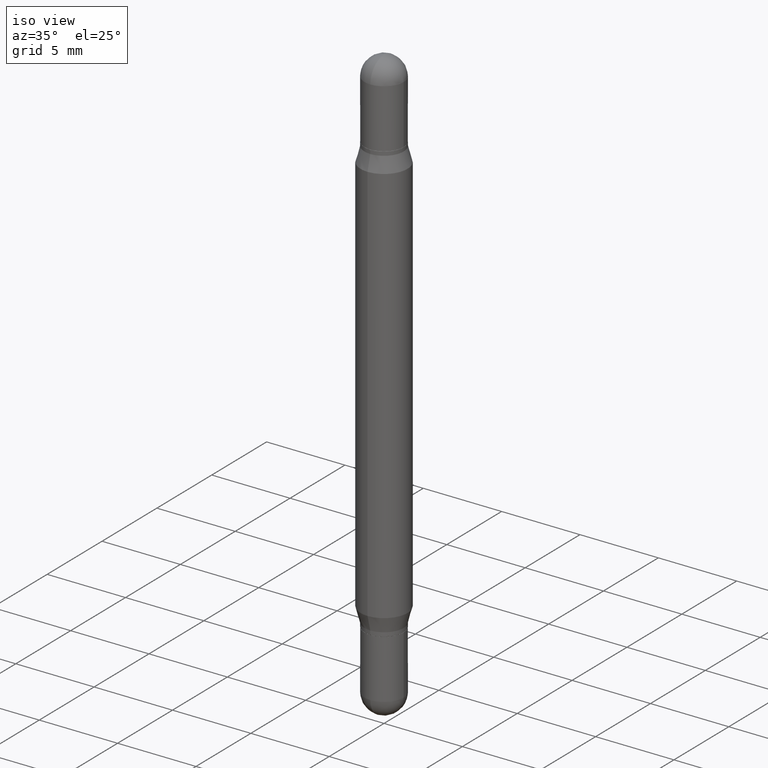
[diagram: clean part render]
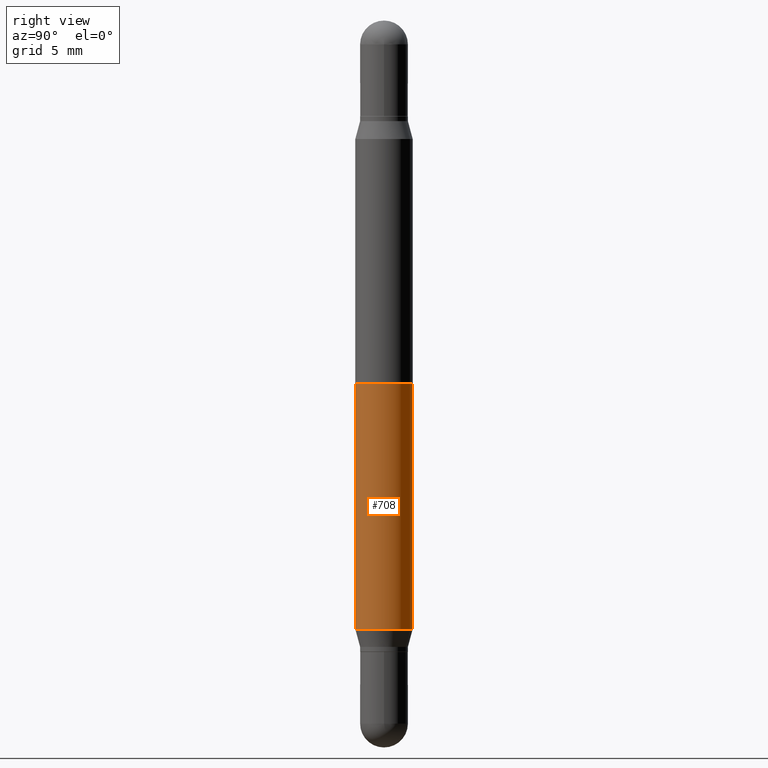
[diagram: tour spotlight — one face highlighted and labeled with its STEP entity id]
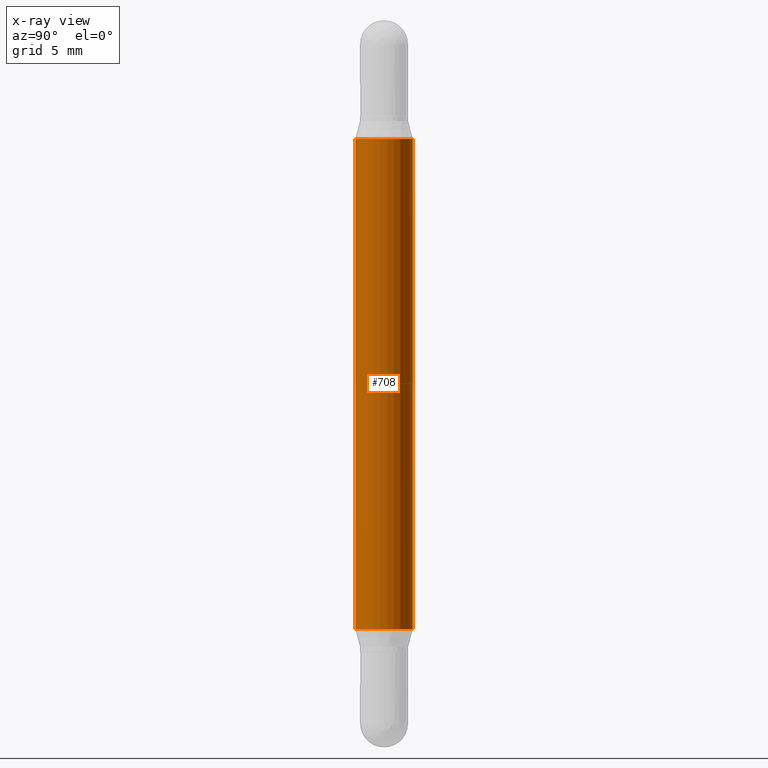
[diagram: x-ray of the same camera — body ghosted, this tour face saturated]
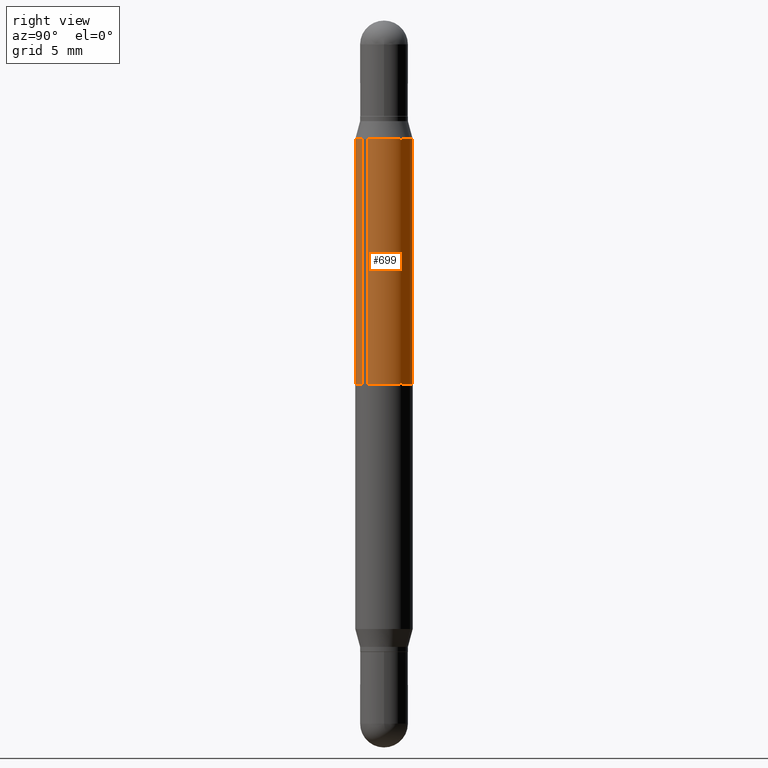
[diagram: tour spotlight — one face highlighted and labeled with its STEP entity id]
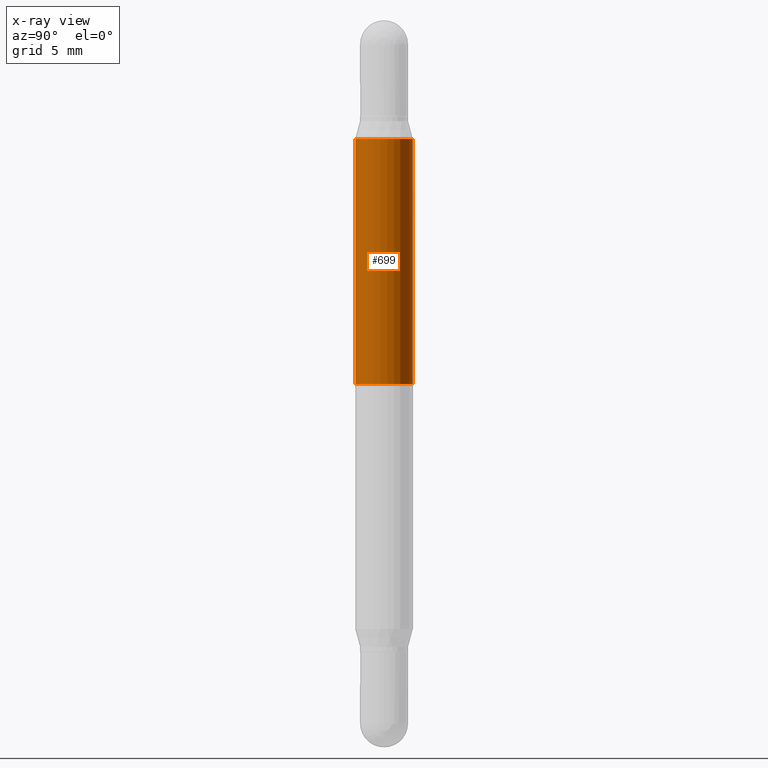
[diagram: x-ray of the same camera — body ghosted, this tour face saturated]
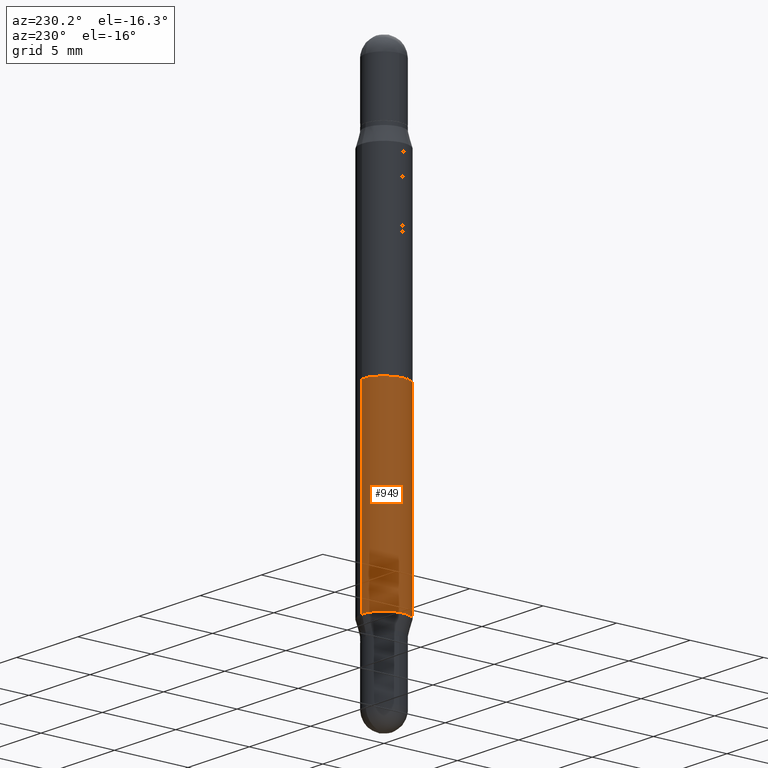
[diagram: tour spotlight — one face highlighted and labeled with its STEP entity id]
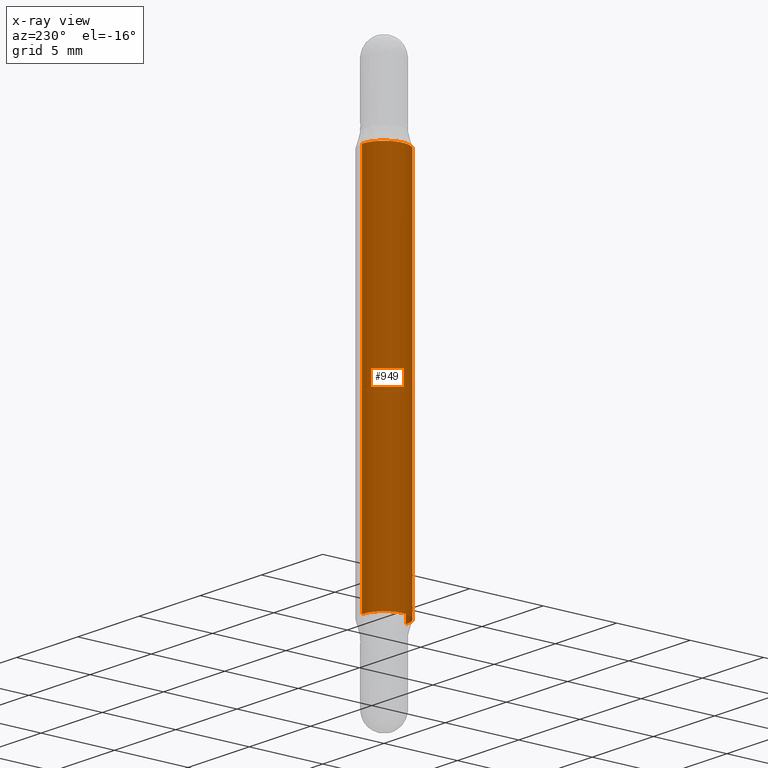
[diagram: x-ray of the same camera — body ghosted, this tour face saturated]
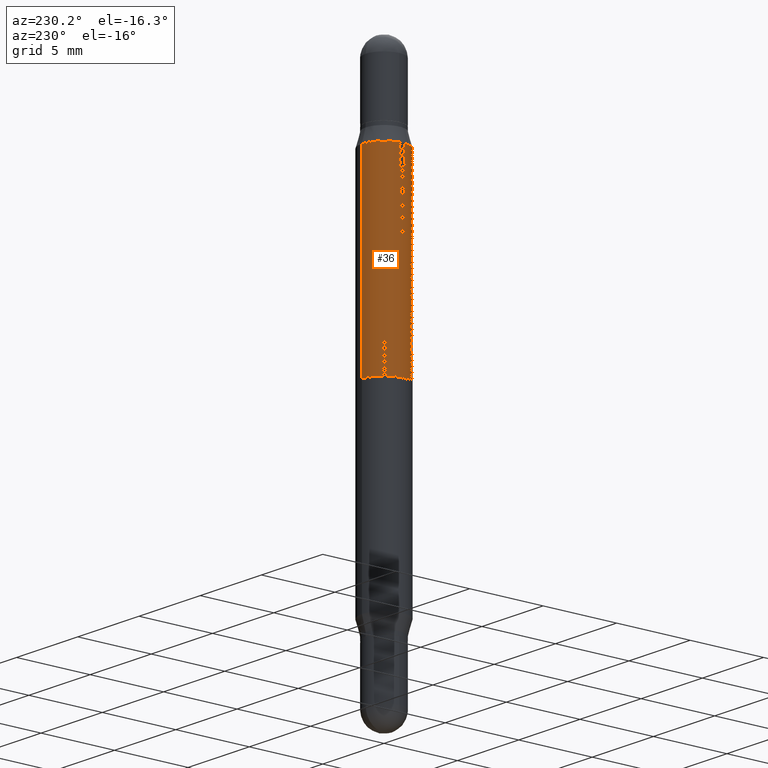
[diagram: tour spotlight — one face highlighted and labeled with its STEP entity id]
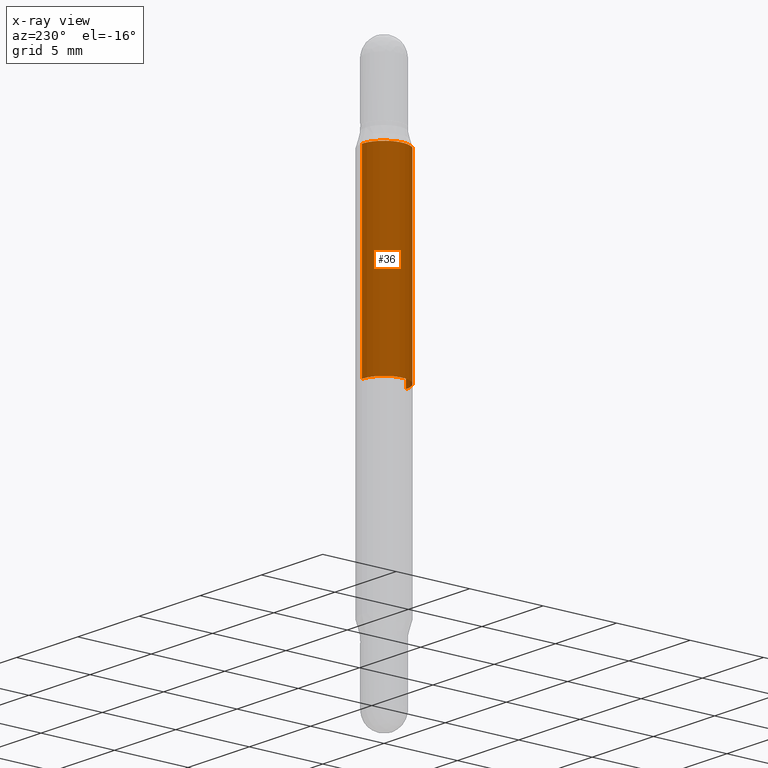
[diagram: x-ray of the same camera — body ghosted, this tour face saturated]
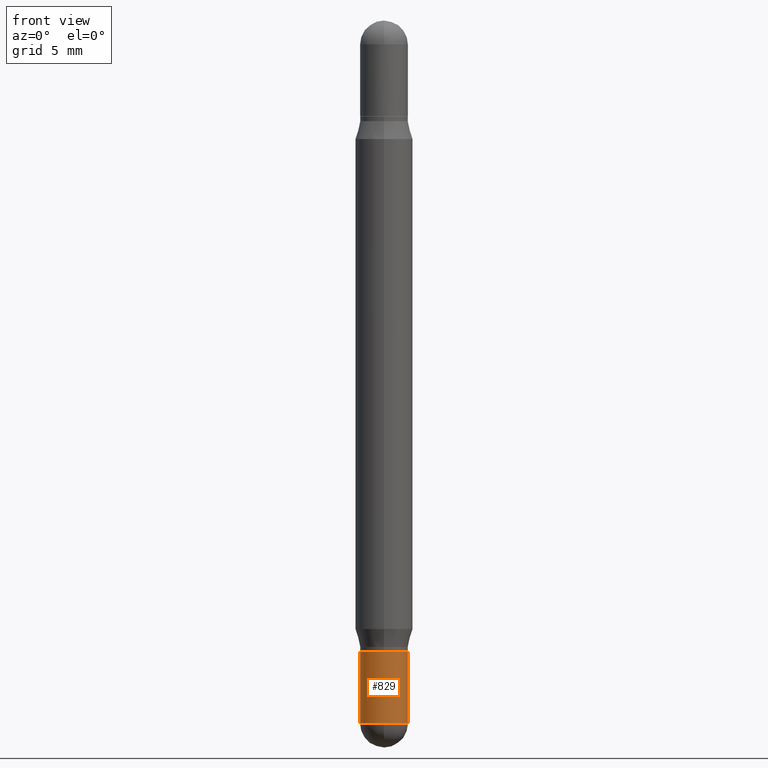
[diagram: tour spotlight — one face highlighted and labeled with its STEP entity id]
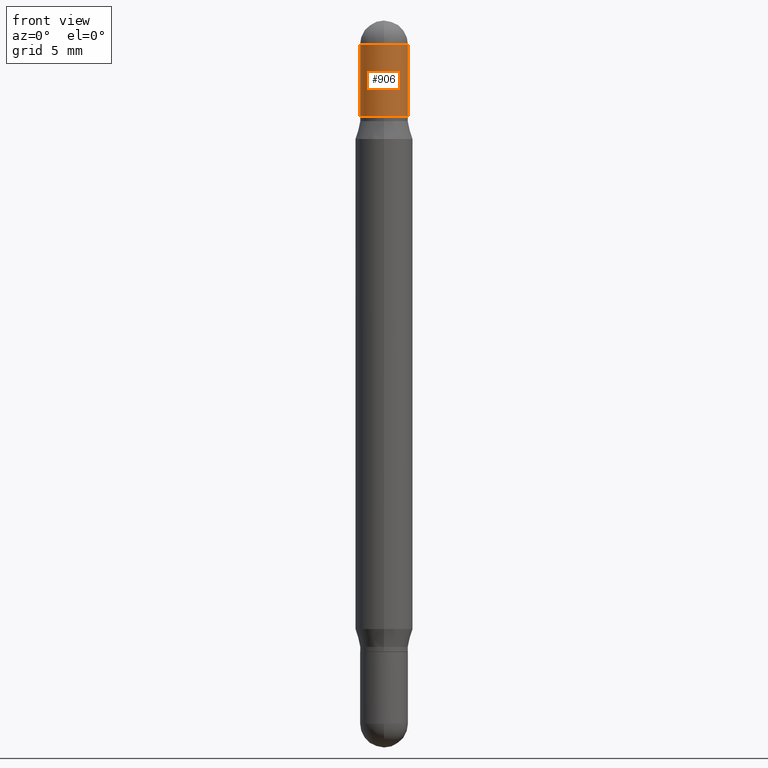
[diagram: tour spotlight — one face highlighted and labeled with its STEP entity id]
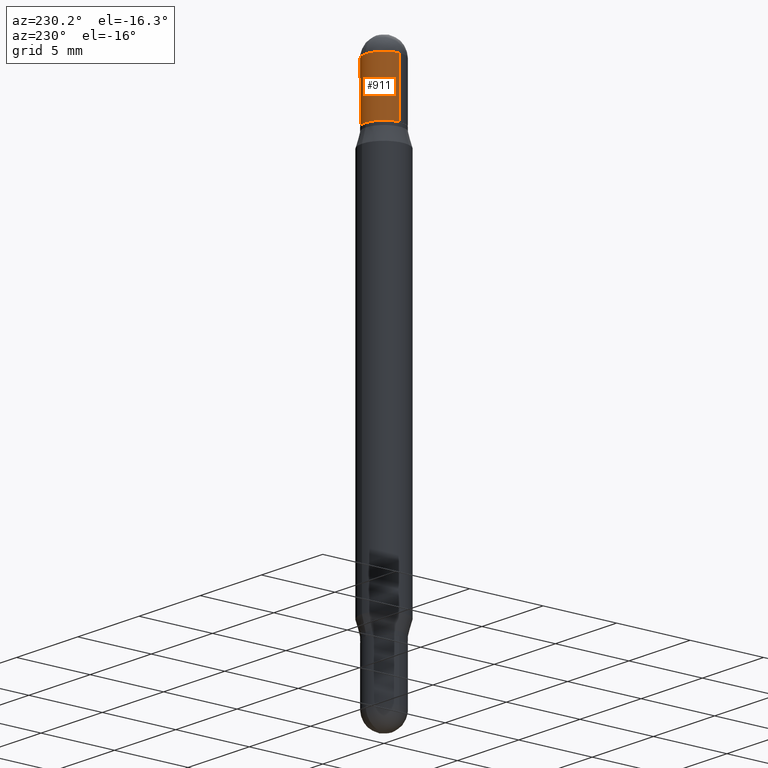
[diagram: tour spotlight — one face highlighted and labeled with its STEP entity id]
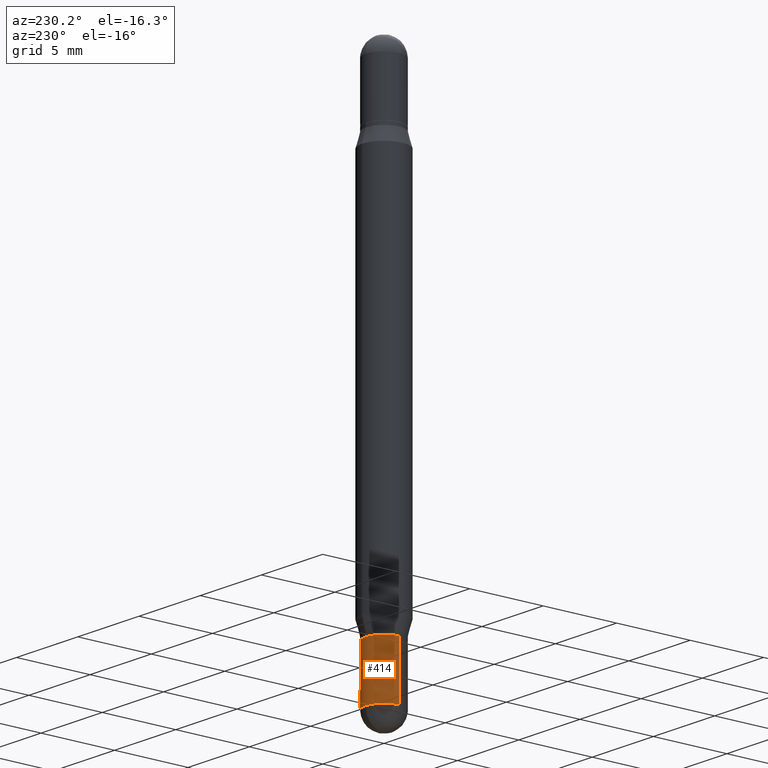
[diagram: tour spotlight — one face highlighted and labeled with its STEP entity id]
A machine part: a face-by-face anatomy tour. The part has 41 B-rep faces; the first image is the clean iso view, then the 8 largest visible faces are spotlighted one at a time (largest first), each with its STEP entity span.

Face 1 — right view, entity #708. An x-ray twin of the same camera follows (body ghosted, this face saturated) — the face is partly hidden behind the body. In plain terms, the highlighted cylindrical surface (edge-blend (fillet) strip) has radius 1.4999 mm, axis along (-0, -0, -1).
Definition (entity closure, byte-faithful):
#16 = CARTESIAN_POINT ( 'NONE',  ( 4.051124067684271599E-16, 0.05904999999999562682, -1.252339299545446538 ) ) ;
#28 = EDGE_CURVE ( 'NONE', #912, #895, #722, .T. ) ;
#45 = DIRECTION ( 'NONE',  ( -6.982962677686265922E-15, -1.000000000000000000, 4.626330217890369336E-15 ) ) ;
#69 = EDGE_CURVE ( 'NONE', #912, #633, #573, .T. ) ;
#70 = ORIENTED_EDGE ( 'NONE', *, *, #69, .T. ) ;
#117 = DIRECTION ( 'NONE',  ( -2.445838769445875239E-29, 3.490951530396766445E-15, 1.000000000000000000 ) ) ;
#125 = AXIS2_PLACEMENT_3D ( 'NONE', #198, #117, #325 ) ;
#175 = EDGE_CURVE ( 'NONE', #633, #644, #613, .T. ) ;
#198 = CARTESIAN_POINT ( 'NONE',  ( 3.063020011328943986E-29, -4.371855794324190726E-15, -1.252339299545446316 ) ) ;
#286 = CARTESIAN_POINT ( 'NONE',  ( -4.123439461173739834E-16, -0.05905000000000521637, -1.496099999999999541 ) ) ;
#325 = DIRECTION ( 'NONE',  ( -6.982962677686265922E-15, -1.000000000000000000, 4.626330217890369336E-15 ) ) ;
#353 = FACE_OUTER_BOUND ( 'NONE', #367, .T. ) ;
#367 = EDGE_LOOP ( 'NONE', ( #901, #1109, #70, #586 ) ) ;
#370 = AXIS2_PLACEMENT_3D ( 'NONE', #855, #435, #529 ) ;
#371 = VECTOR ( 'NONE', #624, 39.37007874015748143 ) ;
#372 = LINE ( 'NONE', #550, #371 ) ;
#384 = DIRECTION ( 'NONE',  ( -2.445838769445875519E-29, -3.480144275424207786E-15, -1.000000000000000000 ) ) ;
#390 = AXIS2_PLACEMENT_3D ( 'NONE', #735, #719, #45 ) ;
#435 = DIRECTION ( 'NONE',  ( 2.445838769445875239E-29, 3.480144275424207392E-15, 1.000000000000000000 ) ) ;
#457 = EDGE_CURVE ( 'NONE', #895, #644, #372, .T. ) ;
#514 = CARTESIAN_POINT ( 'NONE',  ( 4.051124067684395352E-16, 0.05904999999999914484, -0.2437607004545537803 ) ) ;
#529 = DIRECTION ( 'NONE',  ( -6.982962677686265922E-15, -1.000000000000000000, 3.469747663417777397E-15 ) ) ;
#550 = CARTESIAN_POINT ( 'NONE',  ( 4.051124067684088682E-16, 0.05904999999999478028, -1.496100000000000207 ) ) ;
#573 = LINE ( 'NONE', #286, #739 ) ;
#586 = ORIENTED_EDGE ( 'NONE', *, *, #175, .T. ) ;
#613 = CIRCLE ( 'NONE', #125, 0.05904999999999999832 ) ;
#624 = DIRECTION ( 'NONE',  ( -2.445838769445875519E-29, -3.480144275424207786E-15, -1.000000000000000000 ) ) ;
#633 = VERTEX_POINT ( 'NONE', #963 ) ;
#644 = VERTEX_POINT ( 'NONE', #16 ) ;
#708 = ADVANCED_FACE ( 'NONE', ( #353 ), #811, .T. ) ;
#719 = DIRECTION ( 'NONE',  ( -2.445838769445875239E-29, -3.480144275424207392E-15, -1.000000000000000000 ) ) ;
#722 = CIRCLE ( 'NONE', #370, 0.05904999999999999832 ) ;
#735 = CARTESIAN_POINT ( 'NONE',  ( 0.000000000000000000, -5.214728217544379106E-15, -1.496099999999999985 ) ) ;
#739 = VECTOR ( 'NONE', #384, 39.37007874015748143 ) ;
#811 = CYLINDRICAL_SURFACE ( 'NONE', #390, 0.05904999999999999832 ) ;
#855 = CARTESIAN_POINT ( 'NONE',  ( 3.063020011328943986E-29, -8.564067733425325714E-16, -0.2437607004545535860 ) ) ;
#895 = VERTEX_POINT ( 'NONE', #514 ) ;
#901 = ORIENTED_EDGE ( 'NONE', *, *, #457, .F. ) ;
#912 = VERTEX_POINT ( 'NONE', #1096 ) ;
#963 = CARTESIAN_POINT ( 'NONE',  ( -4.123439461173433657E-16, -0.05905000000000436983, -1.252339299545446094 ) ) ;
#1096 = CARTESIAN_POINT ( 'NONE',  ( -4.123439461173433657E-16, -0.05905000000000085181, -0.2437607004545533640 ) ) ;
#1109 = ORIENTED_EDGE ( 'NONE', *, *, #28, .F. ) ;

Face 2 — right view, entity #699. An x-ray twin of the same camera follows (body ghosted, this face saturated) — the face is partly hidden behind the body. In plain terms, the highlighted cylindrical surface (edge-blend (fillet) strip) has radius 1.4999 mm, axis along (-0, -0, -1).
Definition (entity closure, byte-faithful):
#11 = DIRECTION ( 'NONE',  ( -2.445838769445875519E-29, -3.480144275424207786E-15, -1.000000000000000000 ) ) ;
#105 = CARTESIAN_POINT ( 'NONE',  ( 3.063020011328943986E-29, -8.564067733425325714E-16, -0.2437607004545535860 ) ) ;
#171 = DIRECTION ( 'NONE',  ( -2.445838769445875239E-29, -3.480144275424207392E-15, -1.000000000000000000 ) ) ;
#188 = VERTEX_POINT ( 'NONE', #379 ) ;
#264 = VERTEX_POINT ( 'NONE', #501 ) ;
#348 = VERTEX_POINT ( 'NONE', #456 ) ;
#364 = CARTESIAN_POINT ( 'NONE',  ( -4.123439461173739834E-16, -0.05905000000000521637, -1.496099999999999541 ) ) ;
#366 = EDGE_CURVE ( 'NONE', #348, #1071, #671, .T. ) ;
#379 = CARTESIAN_POINT ( 'NONE',  ( -4.123439461173433657E-16, -0.05905000000000085181, -0.2437607004545533640 ) ) ;
#423 = VECTOR ( 'NONE', #874, 39.37007874015748143 ) ;
#456 = CARTESIAN_POINT ( 'NONE',  ( 4.051124067684333229E-16, 0.05904999999999738930, -0.7480500000000002148 ) ) ;
#476 = EDGE_CURVE ( 'NONE', #264, #348, #543, .T. ) ;
#501 = CARTESIAN_POINT ( 'NONE',  ( 4.051124067684395352E-16, 0.05904999999999914484, -0.2437607004545537803 ) ) ;
#521 = DIRECTION ( 'NONE',  ( -6.982962677686265922E-15, -1.000000000000000000, 4.626330217890369336E-15 ) ) ;
#541 = DIRECTION ( 'NONE',  ( -6.982962677686265922E-15, -1.000000000000000000, 3.469747663417777397E-15 ) ) ;
#543 = LINE ( 'NONE', #965, #423 ) ;
#597 = FACE_OUTER_BOUND ( 'NONE', #743, .T. ) ;
#606 = DIRECTION ( 'NONE',  ( -0.000000000000000000, -3.485547902910486918E-15, -1.000000000000000000 ) ) ;
#612 = CARTESIAN_POINT ( 'NONE',  ( -4.123439461173556424E-16, -0.05905000000000261429, -0.7480499999999996597 ) ) ;
#623 = LINE ( 'NONE', #364, #813 ) ;
#626 = DIRECTION ( 'NONE',  ( 2.445838769445875239E-29, 3.480144275424207392E-15, 1.000000000000000000 ) ) ;
#629 = EDGE_CURVE ( 'NONE', #188, #1071, #623, .T. ) ;
#661 = ORIENTED_EDGE ( 'NONE', *, *, #366, .F. ) ;
#671 = CIRCLE ( 'NONE', #757, 0.05904999999999999832 ) ;
#699 = ADVANCED_FACE ( 'NONE', ( #597 ), #942, .T. ) ;
#703 = CARTESIAN_POINT ( 'NONE',  ( 1.829609691483986761E-29, -2.611406292313300924E-15, -0.7480499999999999927 ) ) ;
#743 = EDGE_LOOP ( 'NONE', ( #1025, #810, #843, #661 ) ) ;
#757 = AXIS2_PLACEMENT_3D ( 'NONE', #703, #606, #948 ) ;
#810 = ORIENTED_EDGE ( 'NONE', *, *, #1024, .F. ) ;
#813 = VECTOR ( 'NONE', #11, 39.37007874015748143 ) ;
#843 = ORIENTED_EDGE ( 'NONE', *, *, #629, .T. ) ;
#874 = DIRECTION ( 'NONE',  ( -2.445838769445875519E-29, -3.480144275424207786E-15, -1.000000000000000000 ) ) ;
#877 = CARTESIAN_POINT ( 'NONE',  ( 0.000000000000000000, -5.214728217544379106E-15, -1.496099999999999985 ) ) ;
#925 = AXIS2_PLACEMENT_3D ( 'NONE', #105, #626, #541 ) ;
#942 = CYLINDRICAL_SURFACE ( 'NONE', #1029, 0.05904999999999999832 ) ;
#948 = DIRECTION ( 'NONE',  ( 0.000000000000000000, 1.000000000000000000, -4.626330217890369336E-15 ) ) ;
#965 = CARTESIAN_POINT ( 'NONE',  ( 4.051124067684088682E-16, 0.05904999999999478028, -1.496100000000000207 ) ) ;
#994 = CIRCLE ( 'NONE', #925, 0.05904999999999999832 ) ;
#1024 = EDGE_CURVE ( 'NONE', #188, #264, #994, .T. ) ;
#1025 = ORIENTED_EDGE ( 'NONE', *, *, #476, .F. ) ;
#1029 = AXIS2_PLACEMENT_3D ( 'NONE', #877, #171, #521 ) ;
#1071 = VERTEX_POINT ( 'NONE', #612 ) ;

Face 3 — auxiliary view, entity #949. An x-ray twin of the same camera follows (body ghosted, this face saturated) — the face is partly hidden behind the body. In plain terms, the highlighted cylindrical surface (edge-blend (fillet) strip) has radius 1.4999 mm, axis along (-0, -0, -1).
Definition (entity closure, byte-faithful):
#16 = CARTESIAN_POINT ( 'NONE',  ( 4.051124067684271599E-16, 0.05904999999999562682, -1.252339299545446538 ) ) ;
#69 = EDGE_CURVE ( 'NONE', #912, #633, #573, .T. ) ;
#112 = CIRCLE ( 'NONE', #274, 0.05904999999999999832 ) ;
#234 = CYLINDRICAL_SURFACE ( 'NONE', #1103, 0.05904999999999999832 ) ;
#274 = AXIS2_PLACEMENT_3D ( 'NONE', #542, #790, #532 ) ;
#286 = CARTESIAN_POINT ( 'NONE',  ( -4.123439461173739834E-16, -0.05905000000000521637, -1.496099999999999541 ) ) ;
#294 = CIRCLE ( 'NONE', #890, 0.05904999999999999832 ) ;
#337 = ORIENTED_EDGE ( 'NONE', *, *, #457, .T. ) ;
#371 = VECTOR ( 'NONE', #624, 39.37007874015748143 ) ;
#372 = LINE ( 'NONE', #550, #371 ) ;
#384 = DIRECTION ( 'NONE',  ( -2.445838769445875519E-29, -3.480144275424207786E-15, -1.000000000000000000 ) ) ;
#402 = CARTESIAN_POINT ( 'NONE',  ( 3.063020011328943986E-29, -4.371855794324190726E-15, -1.252339299545446316 ) ) ;
#450 = DIRECTION ( 'NONE',  ( -6.982962677686265922E-15, -1.000000000000000000, 4.626330217890369336E-15 ) ) ;
#457 = EDGE_CURVE ( 'NONE', #895, #644, #372, .T. ) ;
#514 = CARTESIAN_POINT ( 'NONE',  ( 4.051124067684395352E-16, 0.05904999999999914484, -0.2437607004545537803 ) ) ;
#532 = DIRECTION ( 'NONE',  ( -6.982962677686265922E-15, -1.000000000000000000, 3.469747663417777397E-15 ) ) ;
#542 = CARTESIAN_POINT ( 'NONE',  ( 3.063020011328943986E-29, -8.564067733425325714E-16, -0.2437607004545535860 ) ) ;
#550 = CARTESIAN_POINT ( 'NONE',  ( 4.051124067684088682E-16, 0.05904999999999478028, -1.496100000000000207 ) ) ;
#573 = LINE ( 'NONE', #286, #739 ) ;
#577 = CARTESIAN_POINT ( 'NONE',  ( 0.000000000000000000, -5.214728217544379106E-15, -1.496099999999999985 ) ) ;
#605 = EDGE_CURVE ( 'NONE', #895, #912, #112, .T. ) ;
#624 = DIRECTION ( 'NONE',  ( -2.445838769445875519E-29, -3.480144275424207786E-15, -1.000000000000000000 ) ) ;
#633 = VERTEX_POINT ( 'NONE', #963 ) ;
#644 = VERTEX_POINT ( 'NONE', #16 ) ;
#651 = ORIENTED_EDGE ( 'NONE', *, *, #780, .T. ) ;
#701 = DIRECTION ( 'NONE',  ( -2.445838769445875239E-29, -3.480144275424207392E-15, -1.000000000000000000 ) ) ;
#734 = EDGE_LOOP ( 'NONE', ( #897, #337, #651, #746 ) ) ;
#739 = VECTOR ( 'NONE', #384, 39.37007874015748143 ) ;
#746 = ORIENTED_EDGE ( 'NONE', *, *, #69, .F. ) ;
#780 = EDGE_CURVE ( 'NONE', #644, #633, #294, .T. ) ;
#790 = DIRECTION ( 'NONE',  ( 2.445838769445875239E-29, 3.480144275424207392E-15, 1.000000000000000000 ) ) ;
#808 = DIRECTION ( 'NONE',  ( -2.445838769445875239E-29, 3.490951530396766445E-15, 1.000000000000000000 ) ) ;
#890 = AXIS2_PLACEMENT_3D ( 'NONE', #402, #808, #976 ) ;
#895 = VERTEX_POINT ( 'NONE', #514 ) ;
#897 = ORIENTED_EDGE ( 'NONE', *, *, #605, .F. ) ;
#912 = VERTEX_POINT ( 'NONE', #1096 ) ;
#949 = ADVANCED_FACE ( 'NONE', ( #1001 ), #234, .T. ) ;
#963 = CARTESIAN_POINT ( 'NONE',  ( -4.123439461173433657E-16, -0.05905000000000436983, -1.252339299545446094 ) ) ;
#976 = DIRECTION ( 'NONE',  ( -6.982962677686265922E-15, -1.000000000000000000, 4.626330217890369336E-15 ) ) ;
#1001 = FACE_OUTER_BOUND ( 'NONE', #734, .T. ) ;
#1096 = CARTESIAN_POINT ( 'NONE',  ( -4.123439461173433657E-16, -0.05905000000000085181, -0.2437607004545533640 ) ) ;
#1103 = AXIS2_PLACEMENT_3D ( 'NONE', #577, #701, #450 ) ;

Face 4 — auxiliary view, entity #36. An x-ray twin of the same camera follows (body ghosted, this face saturated) — the face is partly hidden behind the body. In plain terms, the highlighted cylindrical surface (edge-blend (fillet) strip) has radius 1.4999 mm, axis along (-0, -0, -1).
Definition (entity closure, byte-faithful):
#11 = DIRECTION ( 'NONE',  ( -2.445838769445875519E-29, -3.480144275424207786E-15, -1.000000000000000000 ) ) ;
#36 = ADVANCED_FACE ( 'NONE', ( #594 ), #513, .T. ) ;
#140 = AXIS2_PLACEMENT_3D ( 'NONE', #861, #688, #1030 ) ;
#188 = VERTEX_POINT ( 'NONE', #379 ) ;
#213 = ORIENTED_EDGE ( 'NONE', *, *, #732, .F. ) ;
#228 = DIRECTION ( 'NONE',  ( -0.000000000000000000, -3.485547902910486918E-15, -1.000000000000000000 ) ) ;
#264 = VERTEX_POINT ( 'NONE', #501 ) ;
#285 = DIRECTION ( 'NONE',  ( 2.445838769445875239E-29, 3.480144275424207392E-15, 1.000000000000000000 ) ) ;
#348 = VERTEX_POINT ( 'NONE', #456 ) ;
#364 = CARTESIAN_POINT ( 'NONE',  ( -4.123439461173739834E-16, -0.05905000000000521637, -1.496099999999999541 ) ) ;
#379 = CARTESIAN_POINT ( 'NONE',  ( -4.123439461173433657E-16, -0.05905000000000085181, -0.2437607004545533640 ) ) ;
#381 = ORIENTED_EDGE ( 'NONE', *, *, #476, .T. ) ;
#395 = ORIENTED_EDGE ( 'NONE', *, *, #504, .F. ) ;
#398 = CARTESIAN_POINT ( 'NONE',  ( 1.829609691483986761E-29, -2.611406292313300924E-15, -0.7480499999999999927 ) ) ;
#423 = VECTOR ( 'NONE', #874, 39.37007874015748143 ) ;
#456 = CARTESIAN_POINT ( 'NONE',  ( 4.051124067684333229E-16, 0.05904999999999738930, -0.7480500000000002148 ) ) ;
#476 = EDGE_CURVE ( 'NONE', #264, #348, #543, .T. ) ;
#501 = CARTESIAN_POINT ( 'NONE',  ( 4.051124067684395352E-16, 0.05904999999999914484, -0.2437607004545537803 ) ) ;
#504 = EDGE_CURVE ( 'NONE', #264, #188, #706, .T. ) ;
#513 = CYLINDRICAL_SURFACE ( 'NONE', #140, 0.05904999999999999832 ) ;
#543 = LINE ( 'NONE', #965, #423 ) ;
#594 = FACE_OUTER_BOUND ( 'NONE', #1005, .T. ) ;
#612 = CARTESIAN_POINT ( 'NONE',  ( -4.123439461173556424E-16, -0.05905000000000261429, -0.7480499999999996597 ) ) ;
#623 = LINE ( 'NONE', #364, #813 ) ;
#629 = EDGE_CURVE ( 'NONE', #188, #1071, #623, .T. ) ;
#672 = CIRCLE ( 'NONE', #833, 0.05904999999999999832 ) ;
#688 = DIRECTION ( 'NONE',  ( -2.445838769445875239E-29, -3.480144275424207392E-15, -1.000000000000000000 ) ) ;
#706 = CIRCLE ( 'NONE', #850, 0.05904999999999999832 ) ;
#711 = CARTESIAN_POINT ( 'NONE',  ( 3.063020011328943986E-29, -8.564067733425325714E-16, -0.2437607004545535860 ) ) ;
#732 = EDGE_CURVE ( 'NONE', #1071, #348, #672, .T. ) ;
#813 = VECTOR ( 'NONE', #11, 39.37007874015748143 ) ;
#833 = AXIS2_PLACEMENT_3D ( 'NONE', #398, #228, #898 ) ;
#837 = ORIENTED_EDGE ( 'NONE', *, *, #629, .F. ) ;
#850 = AXIS2_PLACEMENT_3D ( 'NONE', #711, #285, #883 ) ;
#861 = CARTESIAN_POINT ( 'NONE',  ( 0.000000000000000000, -5.214728217544379106E-15, -1.496099999999999985 ) ) ;
#874 = DIRECTION ( 'NONE',  ( -2.445838769445875519E-29, -3.480144275424207786E-15, -1.000000000000000000 ) ) ;
#883 = DIRECTION ( 'NONE',  ( -6.982962677686265922E-15, -1.000000000000000000, 3.469747663417777397E-15 ) ) ;
#898 = DIRECTION ( 'NONE',  ( 0.000000000000000000, 1.000000000000000000, -4.626330217890369336E-15 ) ) ;
#965 = CARTESIAN_POINT ( 'NONE',  ( 4.051124067684088682E-16, 0.05904999999999478028, -1.496100000000000207 ) ) ;
#1005 = EDGE_LOOP ( 'NONE', ( #395, #381, #213, #837 ) ) ;
#1030 = DIRECTION ( 'NONE',  ( -6.982962677686265922E-15, -1.000000000000000000, 4.626330217890369336E-15 ) ) ;
#1071 = VERTEX_POINT ( 'NONE', #612 ) ;

Face 5 — front view, entity #829. In plain terms, the highlighted cylindrical surface (edge-blend (fillet) strip) has radius 1.2497 mm, axis along (-0, 0, 1).
Definition (entity closure, byte-faithful):
#15 = LINE ( 'NONE', #777, #318 ) ;
#41 = DIRECTION ( 'NONE',  ( -2.445468806185136597E-29, 3.491481338843145583E-15, 1.000000000000000000 ) ) ;
#52 = DIRECTION ( 'NONE',  ( 1.000000000000000000, -6.982962677686261977E-15, 0.000000000000000000 ) ) ;
#59 = VERTEX_POINT ( 'NONE', #449 ) ;
#85 = CARTESIAN_POINT ( 'NONE',  ( -0.04920000000000000068, -4.444391426304611227E-15, -1.446899999999999853 ) ) ;
#156 = EDGE_CURVE ( 'NONE', #695, #704, #989, .T. ) ;
#183 = AXIS2_PLACEMENT_3D ( 'NONE', #1059, #660, #52 ) ;
#214 = FACE_OUTER_BOUND ( 'NONE', #508, .T. ) ;
#242 = ORIENTED_EDGE ( 'NONE', *, *, #433, .F. ) ;
#265 = DIRECTION ( 'NONE',  ( -2.445468806185136877E-29, 3.491481338843145188E-15, 1.000000000000000000 ) ) ;
#267 = CARTESIAN_POINT ( 'NONE',  ( -3.435617637421291240E-16, -0.04920000000000508689, -1.446899999999999631 ) ) ;
#318 = VECTOR ( 'NONE', #265, 39.37007874015748143 ) ;
#339 = EDGE_CURVE ( 'NONE', #483, #59, #812, .T. ) ;
#433 = EDGE_CURVE ( 'NONE', #646, #695, #786, .T. ) ;
#444 = CARTESIAN_POINT ( 'NONE',  ( -0.04920000000000000068, -4.444391426304611227E-15, -1.299199999999999910 ) ) ;
#445 = AXIS2_PLACEMENT_3D ( 'NONE', #484, #41, #818 ) ;
#449 = CARTESIAN_POINT ( 'NONE',  ( 0.04920000000000000068, -5.137540216040744406E-15, -1.446899999999999853 ) ) ;
#483 = VERTEX_POINT ( 'NONE', #267 ) ;
#484 = CARTESIAN_POINT ( 'NONE',  ( 0.000000000000000000, 0.000000000000000000, 0.000000000000000000 ) ) ;
#508 = EDGE_LOOP ( 'NONE', ( #242, #578, #782, #1104, #1078 ) ) ;
#527 = DIRECTION ( 'NONE',  ( -2.445468806185136877E-29, 3.491481338843145188E-15, 1.000000000000000000 ) ) ;
#559 = CYLINDRICAL_SURFACE ( 'NONE', #445, 0.04920000000000000068 ) ;
#578 = ORIENTED_EDGE ( 'NONE', *, *, #1021, .T. ) ;
#608 = CARTESIAN_POINT ( 'NONE',  ( 3.538348815669273817E-29, -5.051824349172146609E-15, -1.446899999999999853 ) ) ;
#646 = VERTEX_POINT ( 'NONE', #85 ) ;
#660 = DIRECTION ( 'NONE',  ( -2.445468806185136597E-29, 3.491481338843145583E-15, 1.000000000000000000 ) ) ;
#685 = DIRECTION ( 'NONE',  ( 1.000000000000000000, -6.982962677686261977E-15, 0.000000000000000000 ) ) ;
#695 = VERTEX_POINT ( 'NONE', #444 ) ;
#704 = VERTEX_POINT ( 'NONE', #770 ) ;
#716 = CARTESIAN_POINT ( 'NONE',  ( -0.04920000000000000068, 3.495870259939692963E-16, -2.420116064405413767E-30 ) ) ;
#766 = CARTESIAN_POINT ( 'NONE',  ( 3.538348815669273817E-29, -5.051824349172146609E-15, -1.446899999999999853 ) ) ;
#770 = CARTESIAN_POINT ( 'NONE',  ( 0.04920000000000000068, -4.879694319167179257E-15, -1.299199999999999910 ) ) ;
#777 = CARTESIAN_POINT ( 'NONE',  ( 0.04920000000000000068, -3.435617637421643269E-16, 2.399078973691600472E-30 ) ) ;
#782 = ORIENTED_EDGE ( 'NONE', *, *, #339, .T. ) ;
#786 = LINE ( 'NONE', #716, #1099 ) ;
#798 = AXIS2_PLACEMENT_3D ( 'NONE', #608, #951, #1048 ) ;
#812 = CIRCLE ( 'NONE', #832, 0.04920000000000000068 ) ;
#818 = DIRECTION ( 'NONE',  ( 1.000000000000000000, -6.982962677686266711E-15, 4.876176775795935793E-29 ) ) ;
#829 = ADVANCED_FACE ( 'NONE', ( #214 ), #559, .T. ) ;
#832 = AXIS2_PLACEMENT_3D ( 'NONE', #766, #1113, #685 ) ;
#891 = CIRCLE ( 'NONE', #798, 0.04920000000000000068 ) ;
#951 = DIRECTION ( 'NONE',  ( -2.445468806185136597E-29, 3.491481338843145583E-15, 1.000000000000000000 ) ) ;
#989 = CIRCLE ( 'NONE', #183, 0.04920000000000000068 ) ;
#1021 = EDGE_CURVE ( 'NONE', #646, #483, #891, .T. ) ;
#1048 = DIRECTION ( 'NONE',  ( 1.000000000000000000, -6.982962677686261977E-15, 0.000000000000000000 ) ) ;
#1059 = CARTESIAN_POINT ( 'NONE',  ( 3.177153072995728757E-29, -4.536132555425014733E-15, -1.299199999999999910 ) ) ;
#1078 = ORIENTED_EDGE ( 'NONE', *, *, #156, .F. ) ;
#1094 = EDGE_CURVE ( 'NONE', #59, #704, #15, .T. ) ;
#1099 = VECTOR ( 'NONE', #527, 39.37007874015748143 ) ;
#1104 = ORIENTED_EDGE ( 'NONE', *, *, #1094, .T. ) ;
#1113 = DIRECTION ( 'NONE',  ( -2.445468806185136597E-29, 3.491481338843145583E-15, 1.000000000000000000 ) ) ;

Face 6 — front view, entity #906. In plain terms, the highlighted cylindrical surface (edge-blend (fillet) strip) has radius 1.2497 mm, axis along (-0, -0, -1).
Definition (entity closure, byte-faithful):
#19 = VECTOR ( 'NONE', #628, 39.37007874015748143 ) ;
#24 = ORIENTED_EDGE ( 'NONE', *, *, #970, .T. ) ;
#25 = CARTESIAN_POINT ( 'NONE',  ( 3.538348815669273817E-29, -1.800740452741599516E-16, -0.04920000000000011864 ) ) ;
#34 = CARTESIAN_POINT ( 'NONE',  ( 3.177153072995728757E-29, -6.940131020467850566E-16, -0.1969000000000000195 ) ) ;
#37 = CIRCLE ( 'NONE', #546, 0.04920000000000000068 ) ;
#60 = CARTESIAN_POINT ( 'NONE',  ( -0.04920000000000000068, -9.950707217011314659E-17, -0.1969000000000000195 ) ) ;
#68 = VERTEX_POINT ( 'NONE', #885 ) ;
#72 = VERTEX_POINT ( 'NONE', #553 ) ;
#73 = DIRECTION ( 'NONE',  ( 1.000000000000000000, -6.982962677686261977E-15, 0.000000000000000000 ) ) ;
#99 = VERTEX_POINT ( 'NONE', #60 ) ;
#103 = EDGE_CURVE ( 'NONE', #72, #830, #37, .T. ) ;
#107 = LINE ( 'NONE', #463, #19 ) ;
#116 = DIRECTION ( 'NONE',  ( 1.000000000000000000, -6.982962677686266711E-15, 0.000000000000000000 ) ) ;
#137 = ORIENTED_EDGE ( 'NONE', *, *, #103, .F. ) ;
#207 = DIRECTION ( 'NONE',  ( 1.000000000000000000, -6.982962677686266711E-15, 0.000000000000000000 ) ) ;
#260 = LINE ( 'NONE', #1036, #815 ) ;
#299 = ORIENTED_EDGE ( 'NONE', *, *, #510, .F. ) ;
#309 = DIRECTION ( 'NONE',  ( 2.445468806185136597E-29, 3.479614466977828254E-15, 1.000000000000000000 ) ) ;
#327 = DIRECTION ( 'NONE',  ( -2.445468806185136597E-29, -3.479614466977828254E-15, -1.000000000000000000 ) ) ;
#400 = EDGE_CURVE ( 'NONE', #817, #72, #973, .T. ) ;
#413 = CARTESIAN_POINT ( 'NONE',  ( 3.538348815669273817E-29, -1.800740452741599516E-16, -0.04920000000000011864 ) ) ;
#459 = DIRECTION ( 'NONE',  ( -2.445468806185136877E-29, -3.479614466977828648E-15, -1.000000000000000000 ) ) ;
#463 = CARTESIAN_POINT ( 'NONE',  ( 0.04920000000000000068, -5.558289981286543630E-15, -1.496099999999999985 ) ) ;
#494 = DIRECTION ( 'NONE',  ( 2.445468806185136597E-29, 3.479614466977828254E-15, 1.000000000000000000 ) ) ;
#510 = EDGE_CURVE ( 'NONE', #830, #68, #107, .T. ) ;
#546 = AXIS2_PLACEMENT_3D ( 'NONE', #413, #494, #207 ) ;
#553 = CARTESIAN_POINT ( 'NONE',  ( -3.435617637421291240E-16, -0.04920000000000022272, -0.04919999999999995210 ) ) ;
#628 = DIRECTION ( 'NONE',  ( -2.445468806185136877E-29, -3.479614466977828648E-15, -1.000000000000000000 ) ) ;
#635 = AXIS2_PLACEMENT_3D ( 'NONE', #25, #1033, #116 ) ;
#662 = FACE_OUTER_BOUND ( 'NONE', #714, .T. ) ;
#714 = EDGE_LOOP ( 'NONE', ( #846, #24, #865, #299, #137 ) ) ;
#742 = AXIS2_PLACEMENT_3D ( 'NONE', #34, #309, #831 ) ;
#744 = CARTESIAN_POINT ( 'NONE',  ( 0.000000000000000000, -5.214728217544379106E-15, -1.496099999999999985 ) ) ;
#785 = EDGE_CURVE ( 'NONE', #99, #68, #904, .T. ) ;
#815 = VECTOR ( 'NONE', #459, 39.37007874015748143 ) ;
#817 = VERTEX_POINT ( 'NONE', #986 ) ;
#830 = VERTEX_POINT ( 'NONE', #991 ) ;
#831 = DIRECTION ( 'NONE',  ( 1.000000000000000000, -6.982962677686266711E-15, 0.000000000000000000 ) ) ;
#846 = ORIENTED_EDGE ( 'NONE', *, *, #400, .F. ) ;
#865 = ORIENTED_EDGE ( 'NONE', *, *, #785, .T. ) ;
#885 = CARTESIAN_POINT ( 'NONE',  ( 0.04920000000000000068, -1.037574865788949384E-15, -0.1969000000000000195 ) ) ;
#904 = CIRCLE ( 'NONE', #742, 0.04920000000000000068 ) ;
#906 = ADVANCED_FACE ( 'NONE', ( #662 ), #927, .T. ) ;
#927 = CYLINDRICAL_SURFACE ( 'NONE', #1009, 0.04920000000000000068 ) ;
#970 = EDGE_CURVE ( 'NONE', #817, #99, #260, .T. ) ;
#973 = CIRCLE ( 'NONE', #635, 0.04920000000000000068 ) ;
#986 = CARTESIAN_POINT ( 'NONE',  ( -0.04920000000000000068, -9.950707217011283845E-17, -0.04920000000000011864 ) ) ;
#991 = CARTESIAN_POINT ( 'NONE',  ( 0.04920000000000000068, -7.806053374026365475E-16, -0.04920000000000011864 ) ) ;
#1009 = AXIS2_PLACEMENT_3D ( 'NONE', #744, #327, #73 ) ;
#1033 = DIRECTION ( 'NONE',  ( 2.445468806185136597E-29, 3.479614466977828254E-15, 1.000000000000000000 ) ) ;
#1036 = CARTESIAN_POINT ( 'NONE',  ( -0.04920000000000000068, -4.877191716054020290E-15, -1.496099999999999985 ) ) ;

Face 7 — auxiliary view, entity #911. In plain terms, the highlighted cylindrical surface (edge-blend (fillet) strip) has radius 1.2497 mm, axis along (-0, -0, -1).
Definition (entity closure, byte-faithful):
#19 = VECTOR ( 'NONE', #628, 39.37007874015748143 ) ;
#20 = AXIS2_PLACEMENT_3D ( 'NONE', #902, #896, #119 ) ;
#55 = FACE_OUTER_BOUND ( 'NONE', #950, .T. ) ;
#60 = CARTESIAN_POINT ( 'NONE',  ( -0.04920000000000000068, -9.950707217011314659E-17, -0.1969000000000000195 ) ) ;
#68 = VERTEX_POINT ( 'NONE', #885 ) ;
#99 = VERTEX_POINT ( 'NONE', #60 ) ;
#107 = LINE ( 'NONE', #463, #19 ) ;
#119 = DIRECTION ( 'NONE',  ( 1.000000000000000000, -6.982962677686266711E-15, 0.000000000000000000 ) ) ;
#186 = CIRCLE ( 'NONE', #758, 0.04920000000000000068 ) ;
#187 = AXIS2_PLACEMENT_3D ( 'NONE', #587, #668, #917 ) ;
#227 = ORIENTED_EDGE ( 'NONE', *, *, #311, .F. ) ;
#238 = CIRCLE ( 'NONE', #581, 0.04920000000000000068 ) ;
#241 = DIRECTION ( 'NONE',  ( 2.445468806185136597E-29, 3.479614466977828254E-15, 1.000000000000000000 ) ) ;
#260 = LINE ( 'NONE', #1036, #815 ) ;
#311 = EDGE_CURVE ( 'NONE', #830, #667, #238, .T. ) ;
#322 = ORIENTED_EDGE ( 'NONE', *, *, #510, .T. ) ;
#424 = ORIENTED_EDGE ( 'NONE', *, *, #750, .T. ) ;
#425 = CYLINDRICAL_SURFACE ( 'NONE', #187, 0.04920000000000000068 ) ;
#459 = DIRECTION ( 'NONE',  ( -2.445468806185136877E-29, -3.479614466977828648E-15, -1.000000000000000000 ) ) ;
#463 = CARTESIAN_POINT ( 'NONE',  ( 0.04920000000000000068, -5.558289981286543630E-15, -1.496099999999999985 ) ) ;
#498 = ORIENTED_EDGE ( 'NONE', *, *, #653, .F. ) ;
#510 = EDGE_CURVE ( 'NONE', #830, #68, #107, .T. ) ;
#515 = CIRCLE ( 'NONE', #20, 0.04920000000000000068 ) ;
#560 = ORIENTED_EDGE ( 'NONE', *, *, #970, .F. ) ;
#581 = AXIS2_PLACEMENT_3D ( 'NONE', #670, #241, #592 ) ;
#587 = CARTESIAN_POINT ( 'NONE',  ( 0.000000000000000000, -5.214728217544379106E-15, -1.496099999999999985 ) ) ;
#592 = DIRECTION ( 'NONE',  ( 1.000000000000000000, -6.982962677686266711E-15, 0.000000000000000000 ) ) ;
#628 = DIRECTION ( 'NONE',  ( -2.445468806185136877E-29, -3.479614466977828648E-15, -1.000000000000000000 ) ) ;
#653 = EDGE_CURVE ( 'NONE', #667, #817, #186, .T. ) ;
#667 = VERTEX_POINT ( 'NONE', #797 ) ;
#668 = DIRECTION ( 'NONE',  ( -2.445468806185136597E-29, -3.479614466977828254E-15, -1.000000000000000000 ) ) ;
#670 = CARTESIAN_POINT ( 'NONE',  ( 3.538348815669273817E-29, -1.800740452741599516E-16, -0.04920000000000011864 ) ) ;
#697 = DIRECTION ( 'NONE',  ( 1.000000000000000000, -6.982962677686266711E-15, 0.000000000000000000 ) ) ;
#750 = EDGE_CURVE ( 'NONE', #68, #99, #515, .T. ) ;
#758 = AXIS2_PLACEMENT_3D ( 'NONE', #1022, #1031, #697 ) ;
#797 = CARTESIAN_POINT ( 'NONE',  ( 3.375365014903949056E-16, 0.04919999999999984802, -0.04920000000000029211 ) ) ;
#815 = VECTOR ( 'NONE', #459, 39.37007874015748143 ) ;
#817 = VERTEX_POINT ( 'NONE', #986 ) ;
#830 = VERTEX_POINT ( 'NONE', #991 ) ;
#885 = CARTESIAN_POINT ( 'NONE',  ( 0.04920000000000000068, -1.037574865788949384E-15, -0.1969000000000000195 ) ) ;
#896 = DIRECTION ( 'NONE',  ( 2.445468806185136597E-29, 3.479614466977828254E-15, 1.000000000000000000 ) ) ;
#902 = CARTESIAN_POINT ( 'NONE',  ( 3.177153072995728757E-29, -6.940131020467850566E-16, -0.1969000000000000195 ) ) ;
#911 = ADVANCED_FACE ( 'NONE', ( #55 ), #425, .T. ) ;
#917 = DIRECTION ( 'NONE',  ( 1.000000000000000000, -6.982962677686261977E-15, 0.000000000000000000 ) ) ;
#950 = EDGE_LOOP ( 'NONE', ( #560, #498, #227, #322, #424 ) ) ;
#970 = EDGE_CURVE ( 'NONE', #817, #99, #260, .T. ) ;
#986 = CARTESIAN_POINT ( 'NONE',  ( -0.04920000000000000068, -9.950707217011283845E-17, -0.04920000000000011864 ) ) ;
#991 = CARTESIAN_POINT ( 'NONE',  ( 0.04920000000000000068, -7.806053374026365475E-16, -0.04920000000000011864 ) ) ;
#1022 = CARTESIAN_POINT ( 'NONE',  ( 3.538348815669273817E-29, -1.800740452741599516E-16, -0.04920000000000011864 ) ) ;
#1031 = DIRECTION ( 'NONE',  ( 2.445468806185136597E-29, 3.479614466977828254E-15, 1.000000000000000000 ) ) ;
#1036 = CARTESIAN_POINT ( 'NONE',  ( -0.04920000000000000068, -4.877191716054020290E-15, -1.496099999999999985 ) ) ;

Face 8 — auxiliary view, entity #414. In plain terms, the highlighted cylindrical surface (edge-blend (fillet) strip) has radius 1.2497 mm, axis along (-0, 0, 1).
Definition (entity closure, byte-faithful):
#15 = LINE ( 'NONE', #777, #318 ) ;
#17 = DIRECTION ( 'NONE',  ( -2.445468806185136597E-29, 3.491481338843145583E-15, 1.000000000000000000 ) ) ;
#59 = VERTEX_POINT ( 'NONE', #449 ) ;
#63 = EDGE_CURVE ( 'NONE', #115, #646, #442, .T. ) ;
#85 = CARTESIAN_POINT ( 'NONE',  ( -0.04920000000000000068, -4.444391426304611227E-15, -1.446899999999999853 ) ) ;
#109 = AXIS2_PLACEMENT_3D ( 'NONE', #362, #1114, #776 ) ;
#115 = VERTEX_POINT ( 'NONE', #320 ) ;
#142 = CIRCLE ( 'NONE', #548, 0.04920000000000000068 ) ;
#161 = CIRCLE ( 'NONE', #461, 0.04920000000000000068 ) ;
#173 = ORIENTED_EDGE ( 'NONE', *, *, #1094, .F. ) ;
#215 = EDGE_CURVE ( 'NONE', #704, #695, #161, .T. ) ;
#265 = DIRECTION ( 'NONE',  ( -2.445468806185136877E-29, 3.491481338843145188E-15, 1.000000000000000000 ) ) ;
#318 = VECTOR ( 'NONE', #265, 39.37007874015748143 ) ;
#320 = CARTESIAN_POINT ( 'NONE',  ( 3.495870259940048443E-16, 0.04919999999999498386, -1.446900000000000075 ) ) ;
#338 = DIRECTION ( 'NONE',  ( 1.000000000000000000, -6.982962677686261977E-15, 0.000000000000000000 ) ) ;
#340 = ORIENTED_EDGE ( 'NONE', *, *, #433, .T. ) ;
#361 = DIRECTION ( 'NONE',  ( -2.445468806185136597E-29, 3.491481338843145583E-15, 1.000000000000000000 ) ) ;
#362 = CARTESIAN_POINT ( 'NONE',  ( 3.538348815669273817E-29, -5.051824349172146609E-15, -1.446899999999999853 ) ) ;
#414 = ADVANCED_FACE ( 'NONE', ( #960 ), #1043, .T. ) ;
#433 = EDGE_CURVE ( 'NONE', #646, #695, #786, .T. ) ;
#437 = EDGE_CURVE ( 'NONE', #59, #115, #142, .T. ) ;
#442 = CIRCLE ( 'NONE', #109, 0.04920000000000000068 ) ;
#444 = CARTESIAN_POINT ( 'NONE',  ( -0.04920000000000000068, -4.444391426304611227E-15, -1.299199999999999910 ) ) ;
#449 = CARTESIAN_POINT ( 'NONE',  ( 0.04920000000000000068, -5.137540216040744406E-15, -1.446899999999999853 ) ) ;
#461 = AXIS2_PLACEMENT_3D ( 'NONE', #923, #680, #338 ) ;
#527 = DIRECTION ( 'NONE',  ( -2.445468806185136877E-29, 3.491481338843145188E-15, 1.000000000000000000 ) ) ;
#536 = ORIENTED_EDGE ( 'NONE', *, *, #63, .T. ) ;
#548 = AXIS2_PLACEMENT_3D ( 'NONE', #1057, #17, #698 ) ;
#589 = ORIENTED_EDGE ( 'NONE', *, *, #215, .F. ) ;
#646 = VERTEX_POINT ( 'NONE', #85 ) ;
#680 = DIRECTION ( 'NONE',  ( -2.445468806185136597E-29, 3.491481338843145583E-15, 1.000000000000000000 ) ) ;
#693 = EDGE_LOOP ( 'NONE', ( #536, #340, #589, #173, #764 ) ) ;
#695 = VERTEX_POINT ( 'NONE', #444 ) ;
#698 = DIRECTION ( 'NONE',  ( 1.000000000000000000, -6.982962677686261977E-15, 0.000000000000000000 ) ) ;
#704 = VERTEX_POINT ( 'NONE', #770 ) ;
#716 = CARTESIAN_POINT ( 'NONE',  ( -0.04920000000000000068, 3.495870259939692963E-16, -2.420116064405413767E-30 ) ) ;
#740 = AXIS2_PLACEMENT_3D ( 'NONE', #781, #361, #1052 ) ;
#764 = ORIENTED_EDGE ( 'NONE', *, *, #437, .T. ) ;
#770 = CARTESIAN_POINT ( 'NONE',  ( 0.04920000000000000068, -4.879694319167179257E-15, -1.299199999999999910 ) ) ;
#776 = DIRECTION ( 'NONE',  ( 1.000000000000000000, -6.982962677686261977E-15, 0.000000000000000000 ) ) ;
#777 = CARTESIAN_POINT ( 'NONE',  ( 0.04920000000000000068, -3.435617637421643269E-16, 2.399078973691600472E-30 ) ) ;
#781 = CARTESIAN_POINT ( 'NONE',  ( 0.000000000000000000, 0.000000000000000000, 0.000000000000000000 ) ) ;
#786 = LINE ( 'NONE', #716, #1099 ) ;
#923 = CARTESIAN_POINT ( 'NONE',  ( 3.177153072995728757E-29, -4.536132555425014733E-15, -1.299199999999999910 ) ) ;
#960 = FACE_OUTER_BOUND ( 'NONE', #693, .T. ) ;
#1043 = CYLINDRICAL_SURFACE ( 'NONE', #740, 0.04920000000000000068 ) ;
#1052 = DIRECTION ( 'NONE',  ( 1.000000000000000000, -6.982962677686266711E-15, 4.876176775795935793E-29 ) ) ;
#1057 = CARTESIAN_POINT ( 'NONE',  ( 3.538348815669273817E-29, -5.051824349172146609E-15, -1.446899999999999853 ) ) ;
#1094 = EDGE_CURVE ( 'NONE', #59, #704, #15, .T. ) ;
#1099 = VECTOR ( 'NONE', #527, 39.37007874015748143 ) ;
#1114 = DIRECTION ( 'NONE',  ( -2.445468806185136597E-29, 3.491481338843145583E-15, 1.000000000000000000 ) ) ;